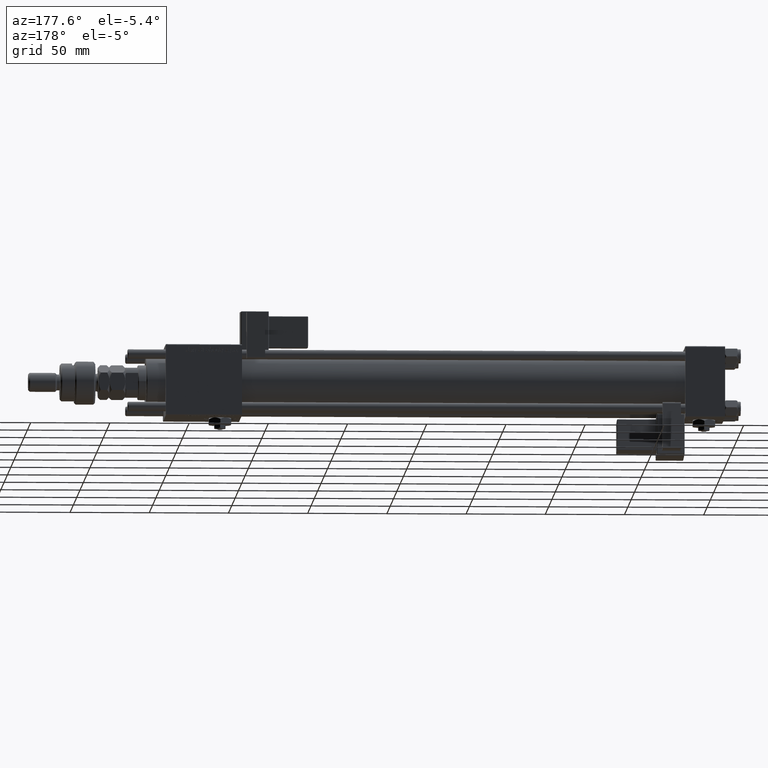
[diagram: clean part render]
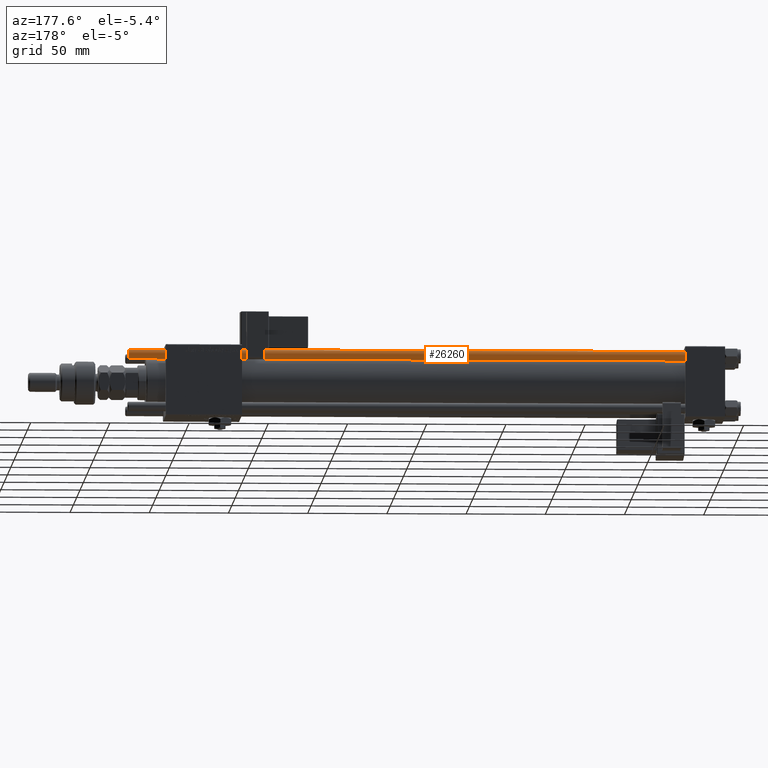
[diagram: same view with one face highlighted and labeled with its STEP entity id]
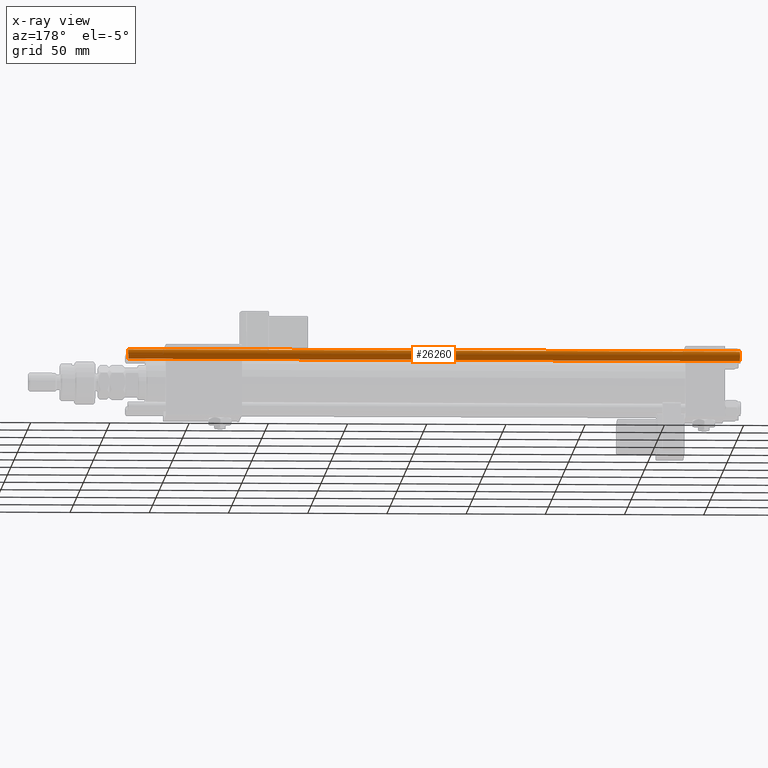
[diagram: x-ray of the same camera — body ghosted, the highlighted face saturated]
A machine part, auxiliary view. The second image highlights one B-rep face of the part: STEP entity #26260.
The next image is the same camera in x-ray: the body ghosted, the highlighted face saturated — about 0% of this face is hidden behind the body in this view.
In plain terms, the highlighted cylindrical surface (edge-blend (fillet) strip) has radius 3 mm, axis along (1, -0, -0).
Its self-contained STEP definition (entity closure, byte-faithful):
#117 = LINE ( 'NONE', #49877, #22651 ) ;
#202 = DIRECTION ( 'NONE',  ( -1.000000000000000000, 0.000000000000000000, 0.000000000000000000 ) ) ;
#5047 = DIRECTION ( 'NONE',  ( -0.000000000000000000, -0.000000000000000000, -1.000000000000000000 ) ) ;
#5192 = VERTEX_POINT ( 'NONE', #16469 ) ;
#5947 = LINE ( 'NONE', #40862, #8615 ) ;
#8046 = CARTESIAN_POINT ( 'NONE',  ( 3.000000000000000444, 3.673940397442060361E-16, 0.5000000000000004441 ) ) ;
#8114 = CARTESIAN_POINT ( 'NONE',  ( 3.000000000000000444, 3.673940397442060361E-16, 386.5000000000000568 ) ) ;
#8615 = VECTOR ( 'NONE', #15334, 1000.000000000000000 ) ;
#8802 = CARTESIAN_POINT ( 'NONE',  ( -3.000000000000000444, 0.000000000000000000, 0.5000000000000004441 ) ) ;
#12896 = EDGE_CURVE ( 'NONE', #25568, #49901, #5947, .T. ) ;
#15334 = DIRECTION ( 'NONE',  ( -0.000000000000000000, -0.000000000000000000, -1.000000000000000000 ) ) ;
#16469 = CARTESIAN_POINT ( 'NONE',  ( -3.000000000000000444, 0.000000000000000000, 386.5000000000000568 ) ) ;
#21417 = EDGE_CURVE ( 'NONE', #49901, #34131, #55244, .T. ) ;
#22651 = VECTOR ( 'NONE', #48916, 1000.000000000000000 ) ;
#23801 = ORIENTED_EDGE ( 'NONE', *, *, #30367, .T. ) ;
#24433 = CYLINDRICAL_SURFACE ( 'NONE', #38975, 3.000000000000000444 ) ;
#25568 = VERTEX_POINT ( 'NONE', #8114 ) ;
#26260 = ADVANCED_FACE ( 'NONE', ( #58065 ), #24433, .T. ) ;
#27389 = AXIS2_PLACEMENT_3D ( 'NONE', #47315, #57639, #56695 ) ;
#29007 = CARTESIAN_POINT ( 'NONE',  ( 0.000000000000000000, 0.000000000000000000, 386.5000000000000568 ) ) ;
#30367 = EDGE_CURVE ( 'NONE', #5192, #25568, #63876, .T. ) ;
#30524 = ORIENTED_EDGE ( 'NONE', *, *, #57585, .F. ) ;
#34131 = VERTEX_POINT ( 'NONE', #8802 ) ;
#36031 = AXIS2_PLACEMENT_3D ( 'NONE', #29007, #43851, #49338 ) ;
#38975 = AXIS2_PLACEMENT_3D ( 'NONE', #44157, #5047, #202 ) ;
#40862 = CARTESIAN_POINT ( 'NONE',  ( 3.000000000000000444, 3.673940397442060361E-16, 387.0000000000000000 ) ) ;
#43851 = DIRECTION ( 'NONE',  ( 0.000000000000000000, 0.000000000000000000, -1.000000000000000000 ) ) ;
#44157 = CARTESIAN_POINT ( 'NONE',  ( 0.000000000000000000, 0.000000000000000000, 387.0000000000000000 ) ) ;
#47315 = CARTESIAN_POINT ( 'NONE',  ( 0.000000000000000000, 0.000000000000000000, 0.5000000000000004441 ) ) ;
#48916 = DIRECTION ( 'NONE',  ( -0.000000000000000000, -0.000000000000000000, -1.000000000000000000 ) ) ;
#49338 = DIRECTION ( 'NONE',  ( 1.000000000000000000, 0.000000000000000000, 0.000000000000000000 ) ) ;
#49877 = CARTESIAN_POINT ( 'NONE',  ( -3.000000000000000444, 0.000000000000000000, 387.0000000000000000 ) ) ;
#49901 = VERTEX_POINT ( 'NONE', #8046 ) ;
#53476 = ORIENTED_EDGE ( 'NONE', *, *, #12896, .T. ) ;
#55244 = CIRCLE ( 'NONE', #27389, 3.000000000000000444 ) ;
#56695 = DIRECTION ( 'NONE',  ( 1.000000000000000000, 0.000000000000000000, 0.000000000000000000 ) ) ;
#57585 = EDGE_CURVE ( 'NONE', #5192, #34131, #117, .T. ) ;
#57639 = DIRECTION ( 'NONE',  ( -0.000000000000000000, -0.000000000000000000, 1.000000000000000000 ) ) ;
#58065 = FACE_OUTER_BOUND ( 'NONE', #59759, .T. ) ;
#59759 = EDGE_LOOP ( 'NONE', ( #23801, #53476, #60056, #30524 ) ) ;
#60056 = ORIENTED_EDGE ( 'NONE', *, *, #21417, .T. ) ;
#63876 = CIRCLE ( 'NONE', #36031, 3.000000000000000444 ) ;